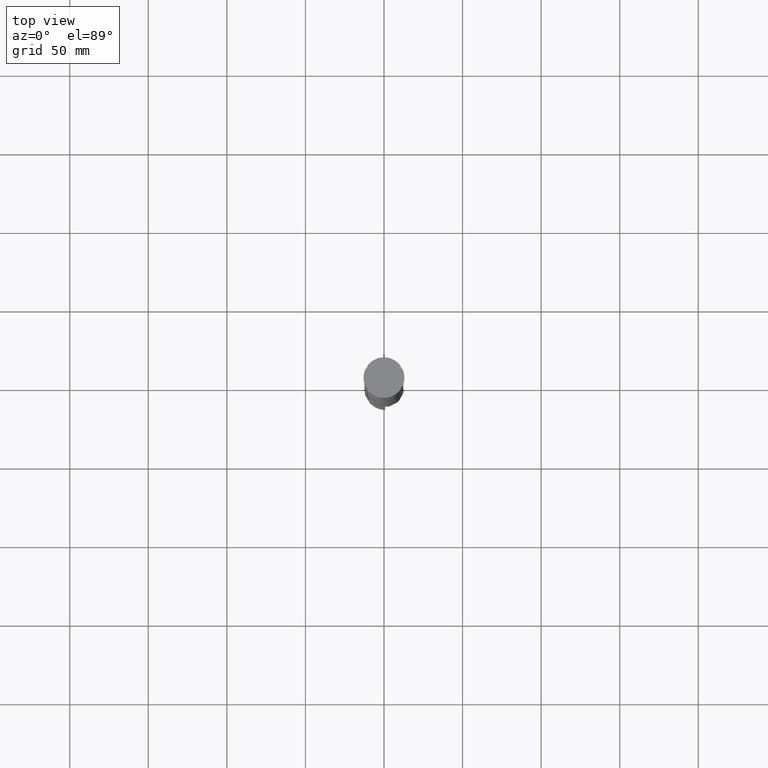
[diagram: clean part render]
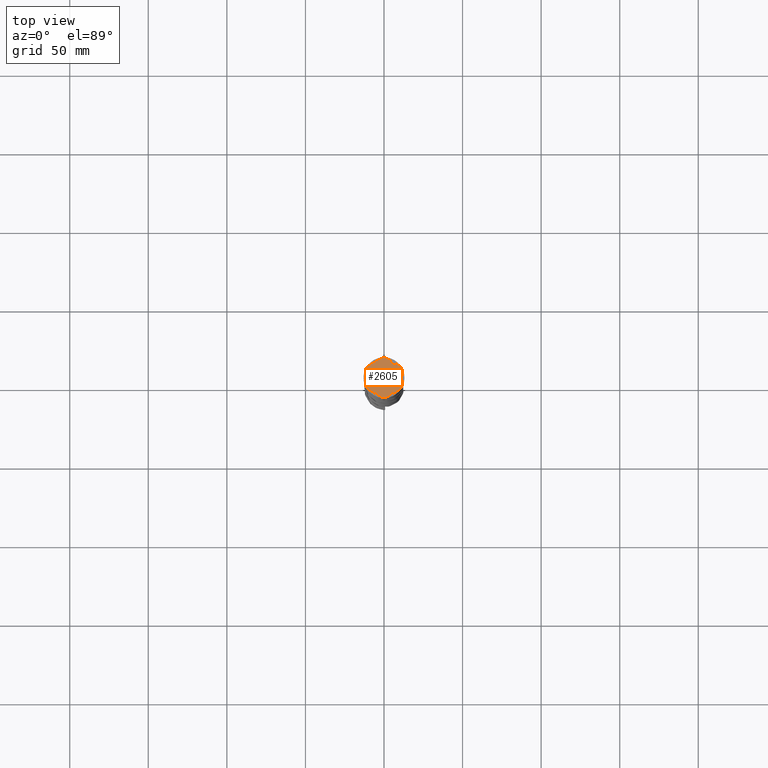
[diagram: same view with one face highlighted and labeled with its STEP entity id]
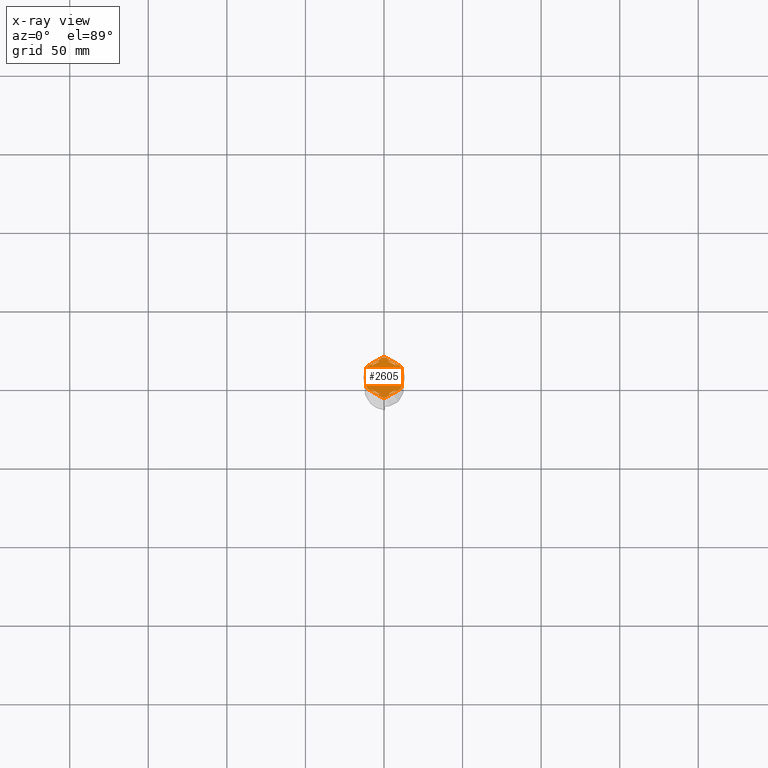
[diagram: x-ray of the same camera — body ghosted, the highlighted face saturated]
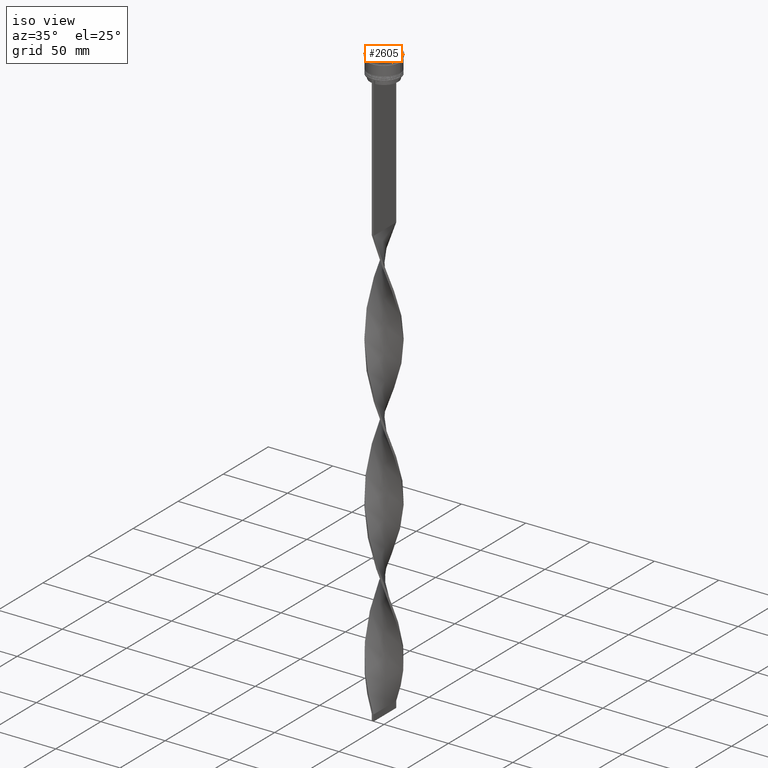
[diagram: same view with one face highlighted and labeled with its STEP entity id]
A machine part, top view. The second image highlights one B-rep face of the part: STEP entity #2605.
The next image is the same camera in x-ray: the body ghosted, the highlighted face saturated — about 0% of this face is hidden behind the body in this view.
A second angle (iso view) of the same face is appended — the face is thin or edge-on in the first view.
In plain terms, the highlighted planar face has unit normal (0, 0, 1).
Its self-contained STEP definition (entity closure, byte-faithful):
#26 = ORIENTED_EDGE ( 'NONE', *, *, #121, .F. ) ;
#44 = CIRCLE ( 'NONE', #1772, 11.00000000000000000 ) ;
#121 = EDGE_CURVE ( 'NONE', #3541, #1212, #3046, .T. ) ;
#197 = LINE ( 'NONE', #2725, #4574 ) ;
#209 = CARTESIAN_POINT ( 'NONE',  ( -2.602085213965210642E-15, -12.12435565298214080, -1.000000000000000888 ) ) ;
#230 = ORIENTED_EDGE ( 'NONE', *, *, #3251, .F. ) ;
#244 = ORIENTED_EDGE ( 'NONE', *, *, #2180, .T. ) ;
#266 = CARTESIAN_POINT ( 'NONE',  ( 0.000000000000000000, 0.000000000000000000, -1.000000000000000000 ) ) ;
#279 = VECTOR ( 'NONE', #2247, 1000.000000000000114 ) ;
#283 = LINE ( 'NONE', #1726, #2623 ) ;
#341 = DIRECTION ( 'NONE',  ( 1.000000000000000000, 0.000000000000000000, 0.000000000000000000 ) ) ;
#348 = LINE ( 'NONE', #1577, #1688 ) ;
#362 = EDGE_CURVE ( 'NONE', #3811, #1487, #792, .T. ) ;
#433 = AXIS2_PLACEMENT_3D ( 'NONE', #1701, #3776, #2087 ) ;
#439 = EDGE_CURVE ( 'NONE', #2404, #3154, #1948, .T. ) ;
#454 = VERTEX_POINT ( 'NONE', #3055 ) ;
#494 = EDGE_CURVE ( 'NONE', #2375, #2300, #3334, .T. ) ;
#504 = EDGE_CURVE ( 'NONE', #2990, #1019, #3706, .T. ) ;
#517 = ORIENTED_EDGE ( 'NONE', *, *, #2499, .F. ) ;
#540 = EDGE_CURVE ( 'NONE', #454, #4410, #3033, .T. ) ;
#551 = EDGE_LOOP ( 'NONE', ( #3444, #779, #1569 ) ) ;
#575 = CARTESIAN_POINT ( 'NONE',  ( -11.50000000000000000, -6.639528095680696573, -1.000000000000000000 ) ) ;
#599 = ORIENTED_EDGE ( 'NONE', *, *, #4461, .F. ) ;
#600 = FACE_BOUND ( 'NONE', #1356, .T. ) ;
#657 = CARTESIAN_POINT ( 'NONE',  ( -10.49999999999999822, -3.278719262151000624, -1.000000000000000888 ) ) ;
#660 = AXIS2_PLACEMENT_3D ( 'NONE', #2783, #1629, #1604 ) ;
#679 = EDGE_CURVE ( 'NONE', #803, #4410, #3556, .T. ) ;
#704 = DIRECTION ( 'NONE',  ( 0.8660254037844387076, -0.4999999999999997780, 0.000000000000000000 ) ) ;
#718 = VECTOR ( 'NONE', #3394, 999.9999999999998863 ) ;
#726 = EDGE_CURVE ( 'NONE', #858, #2188, #44, .T. ) ;
#779 = ORIENTED_EDGE ( 'NONE', *, *, #3763, .F. ) ;
#781 = EDGE_CURVE ( 'NONE', #2188, #858, #3231, .T. ) ;
#786 = DIRECTION ( 'NONE',  ( 1.000000000000000000, 0.000000000000000000, 0.000000000000000000 ) ) ;
#792 = CIRCLE ( 'NONE', #2224, 11.00000000000000000 ) ;
#803 = VERTEX_POINT ( 'NONE', #3963 ) ;
#832 = ORIENTED_EDGE ( 'NONE', *, *, #362, .F. ) ;
#840 = ORIENTED_EDGE ( 'NONE', *, *, #504, .F. ) ;
#858 = VERTEX_POINT ( 'NONE', #4051 ) ;
#879 = VERTEX_POINT ( 'NONE', #4337 ) ;
#895 = DIRECTION ( 'NONE',  ( 0.000000000000000000, 0.000000000000000000, 1.000000000000000000 ) ) ;
#916 = EDGE_CURVE ( 'NONE', #2300, #2501, #3049, .T. ) ;
#917 = CARTESIAN_POINT ( 'NONE',  ( 0.000000000000000000, 0.000000000000000000, -1.000000000000000000 ) ) ;
#946 = DIRECTION ( 'NONE',  ( 0.000000000000000000, 1.000000000000000000, 0.000000000000000000 ) ) ;
#960 = VERTEX_POINT ( 'NONE', #1500 ) ;
#967 = AXIS2_PLACEMENT_3D ( 'NONE', #1260, #3785, #2706 ) ;
#970 = CARTESIAN_POINT ( 'NONE',  ( 0.000000000000000000, 0.000000000000000000, -1.000000000000000000 ) ) ;
#1005 = ORIENTED_EDGE ( 'NONE', *, *, #2551, .T. ) ;
#1019 = VERTEX_POINT ( 'NONE', #1159 ) ;
#1021 = AXIS2_PLACEMENT_3D ( 'NONE', #1832, #2121, #1443 ) ;
#1024 = AXIS2_PLACEMENT_3D ( 'NONE', #3851, #2843, #2107 ) ;
#1045 = FACE_BOUND ( 'NONE', #1994, .T. ) ;
#1060 = DIRECTION ( 'NONE',  ( 0.000000000000000000, 0.000000000000000000, 1.000000000000000000 ) ) ;
#1095 = VERTEX_POINT ( 'NONE', #3611 ) ;
#1101 = EDGE_CURVE ( 'NONE', #4452, #960, #1862, .T. ) ;
#1159 = CARTESIAN_POINT ( 'NONE',  ( -10.41690475583121689, 7.264853426459546348, -1.000000000000000000 ) ) ;
#1170 = AXIS2_PLACEMENT_3D ( 'NONE', #970, #2412, #3466 ) ;
#1212 = VERTEX_POINT ( 'NONE', #1523 ) ;
#1260 = CARTESIAN_POINT ( 'NONE',  ( 0.000000000000000000, 0.000000000000000000, -1.000000000000000000 ) ) ;
#1278 = LINE ( 'NONE', #3014, #3069 ) ;
#1344 = CIRCLE ( 'NONE', #2910, 12.69999999999999929 ) ;
#1345 = CARTESIAN_POINT ( 'NONE',  ( -1.734723475976807094E-15, 12.12435565298214080, -1.000000000000000888 ) ) ;
#1349 = CARTESIAN_POINT ( 'NONE',  ( 10.49999999999999467, 3.278719262151012170, -1.000000000000000888 ) ) ;
#1356 = EDGE_LOOP ( 'NONE', ( #1586, #2896 ) ) ;
#1416 = CARTESIAN_POINT ( 'NONE',  ( 0.000000000000000000, 0.000000000000000000, -1.000000000000000000 ) ) ;
#1443 = DIRECTION ( 'NONE',  ( 1.000000000000000000, 0.000000000000000000, 0.000000000000000000 ) ) ;
#1459 = ORIENTED_EDGE ( 'NONE', *, *, #3764, .F. ) ;
#1469 = VERTEX_POINT ( 'NONE', #1965 ) ;
#1476 = DIRECTION ( 'NONE',  ( 0.000000000000000000, 0.000000000000000000, 1.000000000000000000 ) ) ;
#1487 = VERTEX_POINT ( 'NONE', #1942 ) ;
#1500 = CARTESIAN_POINT ( 'NONE',  ( 10.41690475583121867, -7.264853426459537467, -1.000000000000000000 ) ) ;
#1523 = CARTESIAN_POINT ( 'NONE',  ( -2.410545827099876082, -10.73262637081210435, -1.000000000000000888 ) ) ;
#1569 = ORIENTED_EDGE ( 'NONE', *, *, #916, .F. ) ;
#1577 = CARTESIAN_POINT ( 'NONE',  ( 10.49999999999999467, 6.062177826491072175, -1.000000000000000888 ) ) ;
#1581 = LINE ( 'NONE', #4014, #3571 ) ;
#1586 = ORIENTED_EDGE ( 'NONE', *, *, #2366, .F. ) ;
#1597 = ORIENTED_EDGE ( 'NONE', *, *, #4215, .T. ) ;
#1604 = DIRECTION ( 'NONE',  ( 1.000000000000000000, 0.000000000000000000, 0.000000000000000000 ) ) ;
#1629 = DIRECTION ( 'NONE',  ( 0.000000000000000000, 0.000000000000000000, 1.000000000000000000 ) ) ;
#1630 = CARTESIAN_POINT ( 'NONE',  ( -11.50000000000000000, -5.388877434122992582, -1.000000000000000000 ) ) ;
#1647 = VECTOR ( 'NONE', #2424, 1000.000000000000114 ) ;
#1654 = DIRECTION ( 'NONE',  ( 0.8660254037844387076, -0.4999999999999999445, 0.000000000000000000 ) ) ;
#1662 = CARTESIAN_POINT ( 'NONE',  ( 2.410545827099865868, -10.73262637081210791, -1.000000000000000888 ) ) ;
#1668 = LINE ( 'NONE', #3093, #3032 ) ;
#1688 = VECTOR ( 'NONE', #1654, 999.9999999999998863 ) ;
#1698 = DIRECTION ( 'NONE',  ( -0.000000000000000000, -0.000000000000000000, -1.000000000000000000 ) ) ;
#1701 = CARTESIAN_POINT ( 'NONE',  ( 0.000000000000000000, 0.000000000000000000, -1.000000000000000000 ) ) ;
#1721 = CIRCLE ( 'NONE', #4332, 12.69999999999999929 ) ;
#1726 = CARTESIAN_POINT ( 'NONE',  ( -10.49999999999999822, 6.062177826491068622, -1.000000000000000888 ) ) ;
#1752 = FACE_BOUND ( 'NONE', #2951, .T. ) ;
#1772 = AXIS2_PLACEMENT_3D ( 'NONE', #2083, #3166, #4647 ) ;
#1781 = AXIS2_PLACEMENT_3D ( 'NONE', #266, #2488, #4572 ) ;
#1832 = CARTESIAN_POINT ( 'NONE',  ( 0.000000000000000000, 0.000000000000000000, -1.000000000000000000 ) ) ;
#1856 = CIRCLE ( 'NONE', #660, 11.00000000000000000 ) ;
#1862 = LINE ( 'NONE', #4002, #279 ) ;
#1931 = ORIENTED_EDGE ( 'NONE', *, *, #4186, .F. ) ;
#1942 = CARTESIAN_POINT ( 'NONE',  ( 2.410545827099861871, 10.73262637081210791, -1.000000000000000888 ) ) ;
#1948 = LINE ( 'NONE', #209, #718 ) ;
#1955 = ORIENTED_EDGE ( 'NONE', *, *, #679, .F. ) ;
#1965 = CARTESIAN_POINT ( 'NONE',  ( -1.083095244168779780, -12.65373086058253982, -1.000000000000000000 ) ) ;
#1994 = EDGE_LOOP ( 'NONE', ( #2720, #3866 ) ) ;
#2055 = ORIENTED_EDGE ( 'NONE', *, *, #2999, .F. ) ;
#2083 = CARTESIAN_POINT ( 'NONE',  ( 0.000000000000000000, 0.000000000000000000, -1.000000000000000000 ) ) ;
#2087 = DIRECTION ( 'NONE',  ( 1.000000000000000000, 0.000000000000000000, 0.000000000000000000 ) ) ;
#2107 = DIRECTION ( 'NONE',  ( 1.000000000000000000, 1.243449787580175325E-14, 0.000000000000000000 ) ) ;
#2121 = DIRECTION ( 'NONE',  ( 0.000000000000000000, 0.000000000000000000, 1.000000000000000000 ) ) ;
#2122 = CARTESIAN_POINT ( 'NONE',  ( 0.000000000000000000, 13.27905619136138959, -1.000000000000000000 ) ) ;
#2180 = EDGE_CURVE ( 'NONE', #2990, #3457, #1581, .T. ) ;
#2188 = VERTEX_POINT ( 'NONE', #4436 ) ;
#2197 = DIRECTION ( 'NONE',  ( -0.000000000000000000, -0.000000000000000000, -1.000000000000000000 ) ) ;
#2218 = CARTESIAN_POINT ( 'NONE',  ( 0.000000000000000000, 0.000000000000000000, -1.000000000000000000 ) ) ;
#2224 = AXIS2_PLACEMENT_3D ( 'NONE', #917, #895, #3746 ) ;
#2247 = DIRECTION ( 'NONE',  ( 0.8660254037844385966, 0.4999999999999999445, 0.000000000000000000 ) ) ;
#2251 = DIRECTION ( 'NONE',  ( 0.8660254037844385966, 0.5000000000000001110, -0.000000000000000000 ) ) ;
#2300 = VERTEX_POINT ( 'NONE', #3446 ) ;
#2310 = CARTESIAN_POINT ( 'NONE',  ( 0.000000000000000000, 0.000000000000000000, -1.000000000000000000 ) ) ;
#2366 = EDGE_CURVE ( 'NONE', #3154, #2404, #1856, .T. ) ;
#2370 = ORIENTED_EDGE ( 'NONE', *, *, #540, .T. ) ;
#2374 = LINE ( 'NONE', #575, #3570 ) ;
#2375 = VERTEX_POINT ( 'NONE', #2715 ) ;
#2400 = FACE_OUTER_BOUND ( 'NONE', #4243, .T. ) ;
#2404 = VERTEX_POINT ( 'NONE', #4213 ) ;
#2412 = DIRECTION ( 'NONE',  ( 0.000000000000000000, 0.000000000000000000, 1.000000000000000000 ) ) ;
#2424 = DIRECTION ( 'NONE',  ( -0.8660254037844385966, -0.5000000000000001110, 0.000000000000000000 ) ) ;
#2436 = CARTESIAN_POINT ( 'NONE',  ( 11.49999999999999822, 5.388877434122992582, -1.000000000000000000 ) ) ;
#2469 = EDGE_LOOP ( 'NONE', ( #26, #2055 ) ) ;
#2488 = DIRECTION ( 'NONE',  ( 0.000000000000000000, 0.000000000000000000, 1.000000000000000000 ) ) ;
#2499 = EDGE_CURVE ( 'NONE', #4452, #1469, #1344, .T. ) ;
#2501 = VERTEX_POINT ( 'NONE', #657 ) ;
#2534 = VECTOR ( 'NONE', #2713, 1000.000000000000000 ) ;
#2551 = EDGE_CURVE ( 'NONE', #803, #1019, #2769, .T. ) ;
#2605 = ADVANCED_FACE ( 'NONE', ( #3907, #1752, #600, #3180, #4264, #1045, #2400 ), #3136, .T. ) ;
#2623 = VECTOR ( 'NONE', #946, 1000.000000000000000 ) ;
#2630 = DIRECTION ( 'NONE',  ( -1.430775808321104180E-16, -1.000000000000000000, 0.000000000000000000 ) ) ;
#2668 = DIRECTION ( 'NONE',  ( 0.000000000000000000, -1.000000000000000000, 0.000000000000000000 ) ) ;
#2706 = DIRECTION ( 'NONE',  ( 1.000000000000000000, 7.105427357601001859E-15, 0.000000000000000000 ) ) ;
#2713 = DIRECTION ( 'NONE',  ( -0.8660254037844388186, 0.4999999999999997224, 0.000000000000000000 ) ) ;
#2715 = CARTESIAN_POINT ( 'NONE',  ( -10.49999999999999822, 3.278719262151000624, -1.000000000000000888 ) ) ;
#2718 = DIRECTION ( 'NONE',  ( -0.8660254037844384856, 0.5000000000000002220, 0.000000000000000000 ) ) ;
#2720 = ORIENTED_EDGE ( 'NONE', *, *, #726, .F. ) ;
#2725 = CARTESIAN_POINT ( 'NONE',  ( 11.49999999999999822, -6.639528095680694797, -1.000000000000000000 ) ) ;
#2769 = LINE ( 'NONE', #2122, #1647 ) ;
#2783 = CARTESIAN_POINT ( 'NONE',  ( 0.000000000000000000, 0.000000000000000000, -1.000000000000000000 ) ) ;
#2805 = EDGE_CURVE ( 'NONE', #454, #3680, #1721, .T. ) ;
#2843 = DIRECTION ( 'NONE',  ( -0.000000000000000000, -0.000000000000000000, -1.000000000000000000 ) ) ;
#2896 = ORIENTED_EDGE ( 'NONE', *, *, #439, .F. ) ;
#2910 = AXIS2_PLACEMENT_3D ( 'NONE', #3188, #3553, #341 ) ;
#2917 = DIRECTION ( 'NONE',  ( 1.000000000000000000, 0.000000000000000000, 0.000000000000000000 ) ) ;
#2951 = EDGE_LOOP ( 'NONE', ( #230, #599 ) ) ;
#2990 = VERTEX_POINT ( 'NONE', #3354 ) ;
#2999 = EDGE_CURVE ( 'NONE', #1212, #3541, #1278, .T. ) ;
#3012 = CARTESIAN_POINT ( 'NONE',  ( -8.089454172900133244, -7.453907108661111280, -1.000000000000000888 ) ) ;
#3014 = CARTESIAN_POINT ( 'NONE',  ( -10.49999999999999822, -6.062177826491068622, -1.000000000000000888 ) ) ;
#3021 = ORIENTED_EDGE ( 'NONE', *, *, #1101, .T. ) ;
#3032 = VECTOR ( 'NONE', #2630, 1000.000000000000000 ) ;
#3033 = LINE ( 'NONE', #4456, #2534 ) ;
#3046 = CIRCLE ( 'NONE', #1021, 11.00000000000000000 ) ;
#3049 = CIRCLE ( 'NONE', #4622, 11.00000000000000000 ) ;
#3055 = CARTESIAN_POINT ( 'NONE',  ( 10.41690475583121156, 7.264853426459550789, -1.000000000000000000 ) ) ;
#3069 = VECTOR ( 'NONE', #2718, 1000.000000000000000 ) ;
#3093 = CARTESIAN_POINT ( 'NONE',  ( 10.49999999999999289, -6.062177826491073063, -1.000000000000000888 ) ) ;
#3110 = ORIENTED_EDGE ( 'NONE', *, *, #4639, .F. ) ;
#3123 = DIRECTION ( 'NONE',  ( 1.000000000000000000, 0.000000000000000000, 0.000000000000000000 ) ) ;
#3136 = PLANE ( 'NONE',  #1781 ) ;
#3154 = VERTEX_POINT ( 'NONE', #1662 ) ;
#3166 = DIRECTION ( 'NONE',  ( 0.000000000000000000, 0.000000000000000000, 1.000000000000000000 ) ) ;
#3180 = FACE_BOUND ( 'NONE', #2469, .T. ) ;
#3188 = CARTESIAN_POINT ( 'NONE',  ( 0.000000000000000000, 0.000000000000000000, -1.000000000000000000 ) ) ;
#3231 = LINE ( 'NONE', #1345, #3876 ) ;
#3251 = EDGE_CURVE ( 'NONE', #1095, #3708, #4335, .T. ) ;
#3334 = CIRCLE ( 'NONE', #1170, 11.00000000000000000 ) ;
#3354 = CARTESIAN_POINT ( 'NONE',  ( -11.50000000000000000, 5.388877434122992582, -1.000000000000000000 ) ) ;
#3357 = CIRCLE ( 'NONE', #967, 12.69999999999999929 ) ;
#3394 = DIRECTION ( 'NONE',  ( -0.8660254037844387076, -0.4999999999999999445, 0.000000000000000000 ) ) ;
#3406 = CARTESIAN_POINT ( 'NONE',  ( 11.49999999999999822, -5.388877434122996135, -1.000000000000000000 ) ) ;
#3433 = CARTESIAN_POINT ( 'NONE',  ( 1.083095244168774673, -12.65373086058253982, -1.000000000000000000 ) ) ;
#3444 = ORIENTED_EDGE ( 'NONE', *, *, #494, .F. ) ;
#3446 = CARTESIAN_POINT ( 'NONE',  ( -11.00000000000000000, 0.000000000000000000, -1.000000000000000000 ) ) ;
#3457 = VERTEX_POINT ( 'NONE', #1630 ) ;
#3466 = DIRECTION ( 'NONE',  ( 1.000000000000000000, 0.000000000000000000, 0.000000000000000000 ) ) ;
#3493 = AXIS2_PLACEMENT_3D ( 'NONE', #2310, #1698, #3123 ) ;
#3541 = VERTEX_POINT ( 'NONE', #3012 ) ;
#3553 = DIRECTION ( 'NONE',  ( -0.000000000000000000, -0.000000000000000000, -1.000000000000000000 ) ) ;
#3556 = CIRCLE ( 'NONE', #1024, 12.69999999999999929 ) ;
#3570 = VECTOR ( 'NONE', #704, 1000.000000000000227 ) ;
#3571 = VECTOR ( 'NONE', #2668, 1000.000000000000000 ) ;
#3606 = DIRECTION ( 'NONE',  ( 1.000000000000000000, -1.776356839400250465E-14, 0.000000000000000000 ) ) ;
#3611 = CARTESIAN_POINT ( 'NONE',  ( 10.49999999999999467, -3.278719262151014835, -1.000000000000000888 ) ) ;
#3680 = VERTEX_POINT ( 'NONE', #2436 ) ;
#3706 = CIRCLE ( 'NONE', #3493, 12.69999999999999929 ) ;
#3708 = VERTEX_POINT ( 'NONE', #1349 ) ;
#3746 = DIRECTION ( 'NONE',  ( 1.000000000000000000, 0.000000000000000000, 0.000000000000000000 ) ) ;
#3756 = CARTESIAN_POINT ( 'NONE',  ( 1.083095244168781557, 12.65373086058254160, -1.000000000000000000 ) ) ;
#3763 = EDGE_CURVE ( 'NONE', #2501, #2375, #283, .T. ) ;
#3764 = EDGE_CURVE ( 'NONE', #4204, #960, #4040, .T. ) ;
#3776 = DIRECTION ( 'NONE',  ( -0.000000000000000000, -0.000000000000000000, -1.000000000000000000 ) ) ;
#3785 = DIRECTION ( 'NONE',  ( -0.000000000000000000, -0.000000000000000000, -1.000000000000000000 ) ) ;
#3811 = VERTEX_POINT ( 'NONE', #4585 ) ;
#3839 = ORIENTED_EDGE ( 'NONE', *, *, #4240, .T. ) ;
#3851 = CARTESIAN_POINT ( 'NONE',  ( 0.000000000000000000, 0.000000000000000000, -1.000000000000000000 ) ) ;
#3861 = ORIENTED_EDGE ( 'NONE', *, *, #2805, .F. ) ;
#3866 = ORIENTED_EDGE ( 'NONE', *, *, #781, .F. ) ;
#3875 = EDGE_LOOP ( 'NONE', ( #832, #3110 ) ) ;
#3876 = VECTOR ( 'NONE', #2251, 1000.000000000000000 ) ;
#3907 = FACE_BOUND ( 'NONE', #3875, .T. ) ;
#3961 = AXIS2_PLACEMENT_3D ( 'NONE', #1416, #1060, #2917 ) ;
#3963 = CARTESIAN_POINT ( 'NONE',  ( -1.083095244168783333, 12.65373086058254160, -1.000000000000000000 ) ) ;
#3987 = CARTESIAN_POINT ( 'NONE',  ( 0.000000000000000000, 0.000000000000000000, -1.000000000000000000 ) ) ;
#4002 = CARTESIAN_POINT ( 'NONE',  ( 5.612359739892467248E-18, -13.27905619136138959, -1.000000000000000000 ) ) ;
#4014 = CARTESIAN_POINT ( 'NONE',  ( -11.50000000000000000, 6.639528095680691244, -1.000000000000000000 ) ) ;
#4040 = CIRCLE ( 'NONE', #433, 12.69999999999999929 ) ;
#4051 = CARTESIAN_POINT ( 'NONE',  ( -2.410545827099867200, 10.73262637081210613, -1.000000000000000888 ) ) ;
#4151 = DIRECTION ( 'NONE',  ( 1.306360520641008153E-16, 1.000000000000000000, 0.000000000000000000 ) ) ;
#4186 = EDGE_CURVE ( 'NONE', #879, #3457, #3357, .T. ) ;
#4204 = VERTEX_POINT ( 'NONE', #3406 ) ;
#4213 = CARTESIAN_POINT ( 'NONE',  ( 8.089454172900135021, -7.453907108661109504, -1.000000000000000888 ) ) ;
#4215 = EDGE_CURVE ( 'NONE', #4204, #3680, #197, .T. ) ;
#4240 = EDGE_CURVE ( 'NONE', #879, #1469, #2374, .T. ) ;
#4243 = EDGE_LOOP ( 'NONE', ( #1597, #3861, #2370, #1955, #1005, #840, #244, #1931, #3839, #517, #3021, #1459 ) ) ;
#4264 = FACE_BOUND ( 'NONE', #551, .T. ) ;
#4332 = AXIS2_PLACEMENT_3D ( 'NONE', #2218, #2197, #3606 ) ;
#4335 = CIRCLE ( 'NONE', #3961, 11.00000000000000000 ) ;
#4337 = CARTESIAN_POINT ( 'NONE',  ( -10.41690475583121334, -7.264853426459548125, -1.000000000000000000 ) ) ;
#4410 = VERTEX_POINT ( 'NONE', #3756 ) ;
#4436 = CARTESIAN_POINT ( 'NONE',  ( -8.089454172900135021, 7.453907108661106840, -1.000000000000000888 ) ) ;
#4452 = VERTEX_POINT ( 'NONE', #3433 ) ;
#4456 = CARTESIAN_POINT ( 'NONE',  ( 11.50000000000000000, 6.639528095680698350, -1.000000000000000000 ) ) ;
#4461 = EDGE_CURVE ( 'NONE', #3708, #1095, #1668, .T. ) ;
#4572 = DIRECTION ( 'NONE',  ( 1.000000000000000000, 0.000000000000000000, -0.000000000000000000 ) ) ;
#4574 = VECTOR ( 'NONE', #4151, 1000.000000000000000 ) ;
#4585 = CARTESIAN_POINT ( 'NONE',  ( 8.089454172900138573, 7.453907108661105063, -1.000000000000000888 ) ) ;
#4622 = AXIS2_PLACEMENT_3D ( 'NONE', #3987, #1476, #786 ) ;
#4639 = EDGE_CURVE ( 'NONE', #1487, #3811, #348, .T. ) ;
#4647 = DIRECTION ( 'NONE',  ( 1.000000000000000000, 0.000000000000000000, 0.000000000000000000 ) ) ;